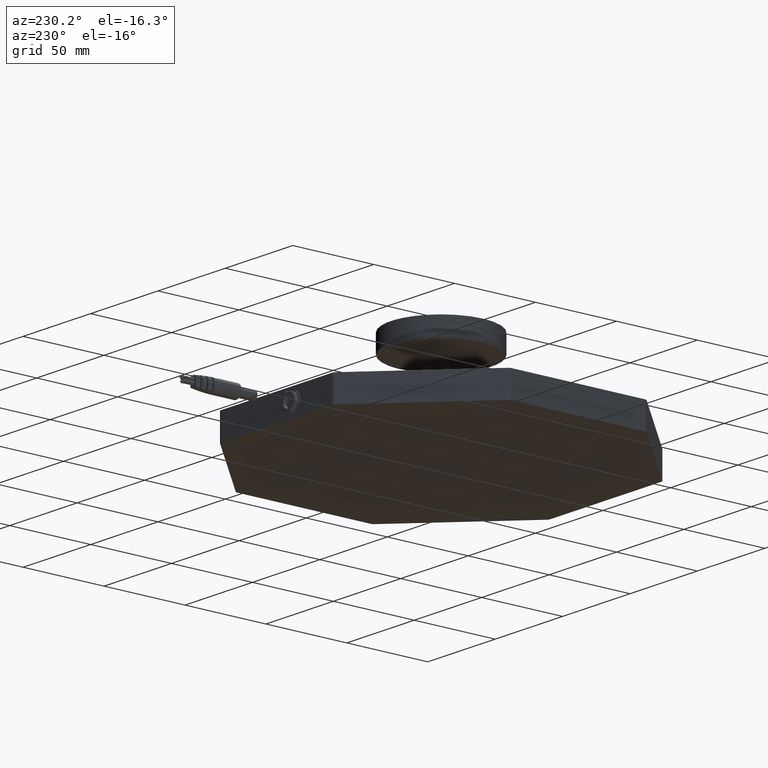
[diagram: clean part render]
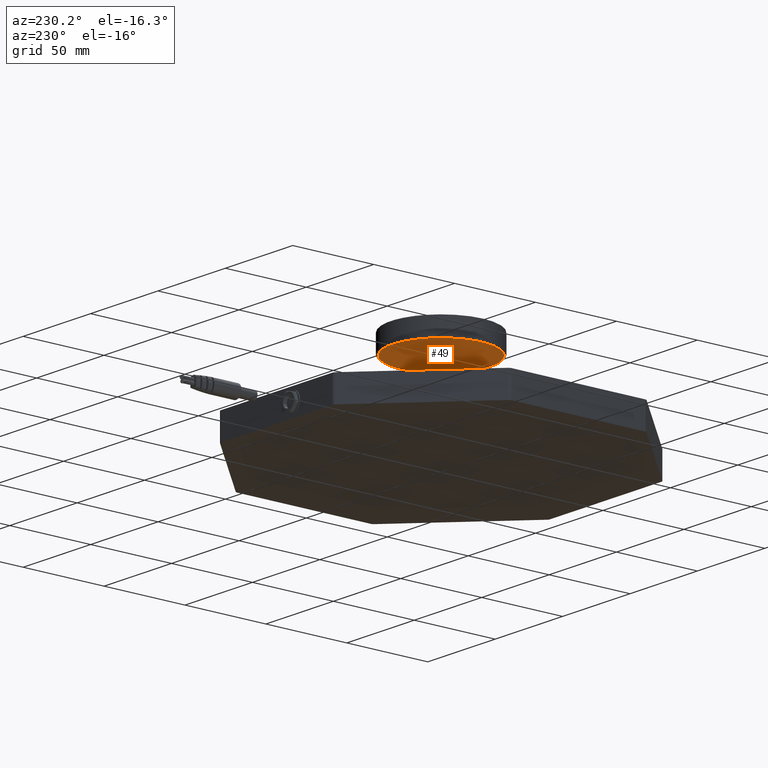
[diagram: same view with one face highlighted and labeled with its STEP entity id]
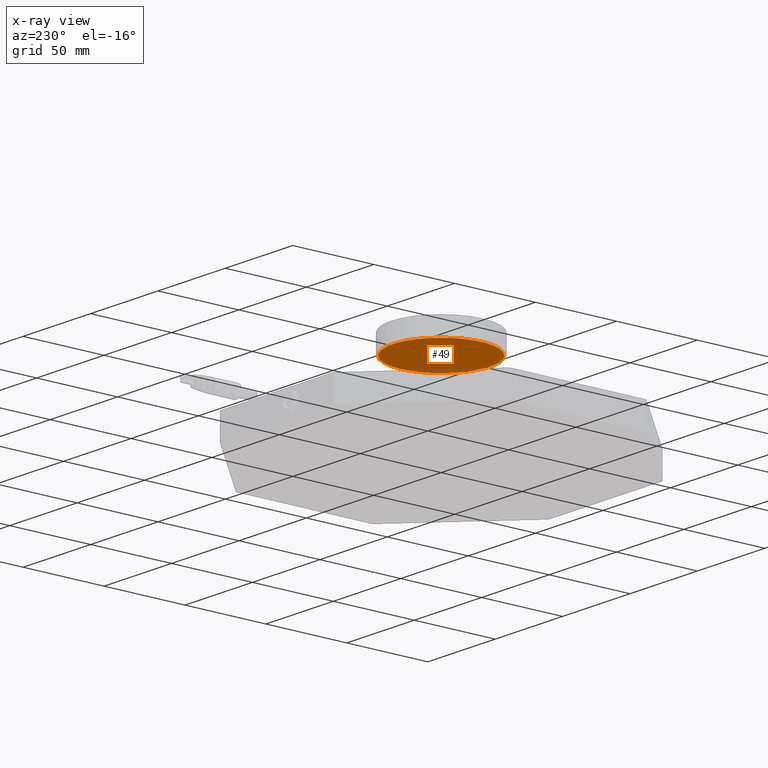
[diagram: x-ray of the same camera — body ghosted, the highlighted face saturated]
A machine part, auxiliary view. The second image highlights one B-rep face of the part: STEP entity #49.
The next image is the same camera in x-ray: the body ghosted, the highlighted face saturated — about 6% of this face is hidden behind the body in this view.
In plain terms, the highlighted planar face has unit normal (0, 0, -1).
Its self-contained STEP definition (entity closure, byte-faithful):
#49=ADVANCED_FACE('',(#201,#185),#2083,.T.);
#185=FACE_BOUND('',#340,.T.);
#201=FACE_OUTER_BOUND('',#339,.T.);
#339=EDGE_LOOP('',(#495));
#340=EDGE_LOOP('',(#496));
#495=ORIENTED_EDGE('',*,*,#1157,.T.);
#496=ORIENTED_EDGE('',*,*,#1159,.T.);
#1157=EDGE_CURVE('',#1828,#1828,#1728,.T.);
#1159=EDGE_CURVE('',#1829,#1829,#1729,.T.);
#1728=(
BOUNDED_CURVE()
B_SPLINE_CURVE(2,(#2415,#2416,#2417,#2418,#2419,#2420,#2421,#2422,#2423),
 .UNSPECIFIED.,.T.,.F.)
B_SPLINE_CURVE_WITH_KNOTS((3,2,2,2,3),(0.,47.1238898038469,94.2477796076938,
141.371669411541,188.495559215388),.UNSPECIFIED.)
CURVE()
GEOMETRIC_REPRESENTATION_ITEM()
RATIONAL_B_SPLINE_CURVE((1.,0.707106781186548,1.,0.707106781186548,1.,0.707106781186548,
1.,0.707106781186548,1.))
REPRESENTATION_ITEM('')
);
#1729=(
BOUNDED_CURVE()
B_SPLINE_CURVE(2,(#2426,#2427,#2428,#2429,#2430,#2431,#2432,#2433,#2434),
 .UNSPECIFIED.,.T.,.F.)
B_SPLINE_CURVE_WITH_KNOTS((3,2,2,2,3),(-18.8495559215388,-14.1371669411541,
-9.42477796076938,-4.71238898038469,0.),.UNSPECIFIED.)
CURVE()
GEOMETRIC_REPRESENTATION_ITEM()
RATIONAL_B_SPLINE_CURVE((1.,0.707106781186548,1.,0.707106781186548,1.,0.707106781186548,
1.,0.707106781186548,1.))
REPRESENTATION_ITEM('')
);
#1828=VERTEX_POINT('',#2391);
#1829=VERTEX_POINT('',#2392);
#2083=PLANE('',#2162);
#2162=AXIS2_PLACEMENT_3D('',#2307,#2225,$);
#2225=DIRECTION('',(0.,0.,-1.));
#2307=CARTESIAN_POINT('',(-42.3738065408882,42.3738065408882,52.7129292320498));
#2391=CARTESIAN_POINT('',(22.2429003390215,-20.1309062018668,52.7129292320498));
#2392=CARTESIAN_POINT('',(2.22429003390215,-2.01309062018668,52.7129292320498));
#2415=CARTESIAN_POINT('',(22.2429003390215,-20.1309062018668,52.7129292320498));
#2416=CARTESIAN_POINT('',(2.11199413715474,-42.3738065408882,52.7129292320498));
#2417=CARTESIAN_POINT('',(-20.1309062018668,-22.2429003390215,52.7129292320498));
#2418=CARTESIAN_POINT('',(-42.3738065408882,-2.11199413715474,52.7129292320498));
#2419=CARTESIAN_POINT('',(-22.2429003390215,20.1309062018668,52.7129292320498));
#2420=CARTESIAN_POINT('',(-2.11199413715474,42.3738065408882,52.7129292320498));
#2421=CARTESIAN_POINT('',(20.1309062018668,22.2429003390215,52.7129292320498));
#2422=CARTESIAN_POINT('',(42.3738065408882,2.11199413715474,52.7129292320498));
#2423=CARTESIAN_POINT('',(22.2429003390215,-20.1309062018668,52.7129292320498));
#2426=CARTESIAN_POINT('',(2.22429003390215,-2.01309062018668,52.7129292320498));
#2427=CARTESIAN_POINT('',(4.23738065408882,0.211199413715474,52.7129292320498));
#2428=CARTESIAN_POINT('',(2.01309062018668,2.22429003390215,52.7129292320498));
#2429=CARTESIAN_POINT('',(-0.211199413715474,4.23738065408882,52.7129292320498));
#2430=CARTESIAN_POINT('',(-2.22429003390215,2.01309062018668,52.7129292320498));
#2431=CARTESIAN_POINT('',(-4.23738065408882,-0.211199413715474,52.7129292320498));
#2432=CARTESIAN_POINT('',(-2.01309062018668,-2.22429003390215,52.7129292320498));
#2433=CARTESIAN_POINT('',(0.211199413715474,-4.23738065408882,52.7129292320498));
#2434=CARTESIAN_POINT('',(2.22429003390215,-2.01309062018668,52.7129292320498));